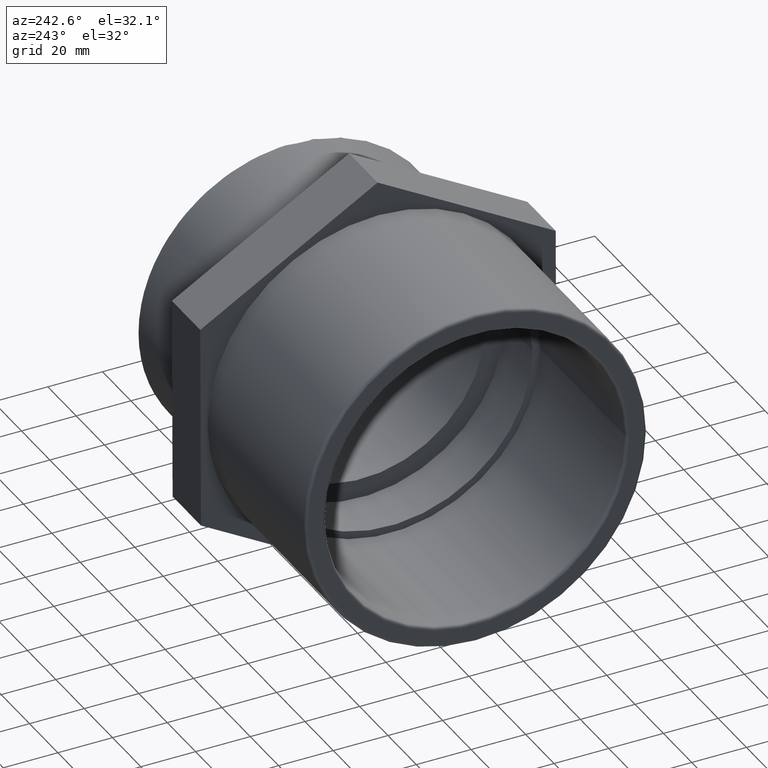
[diagram: clean part render]
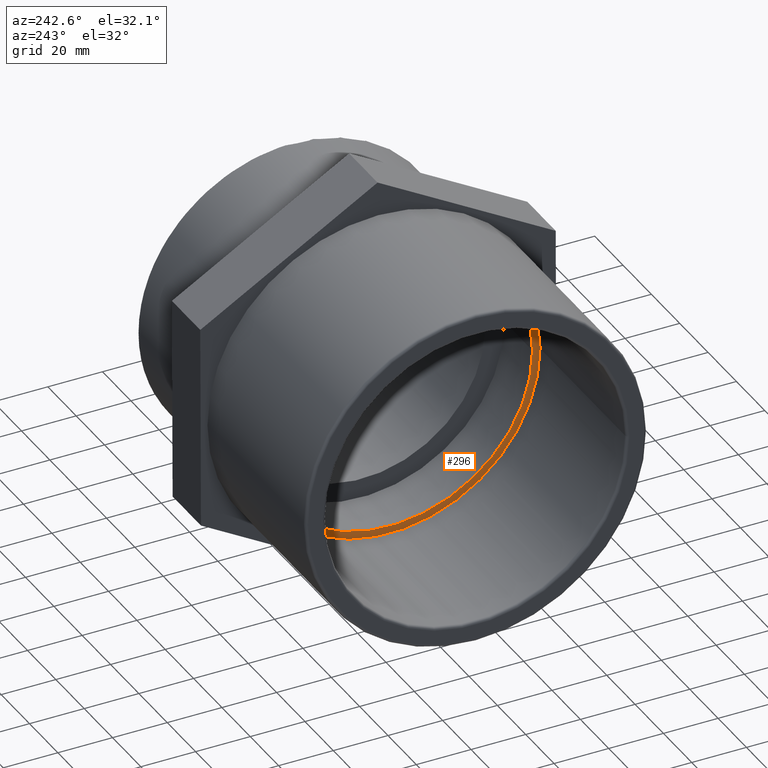
[diagram: same view with one face highlighted and labeled with its STEP entity id]
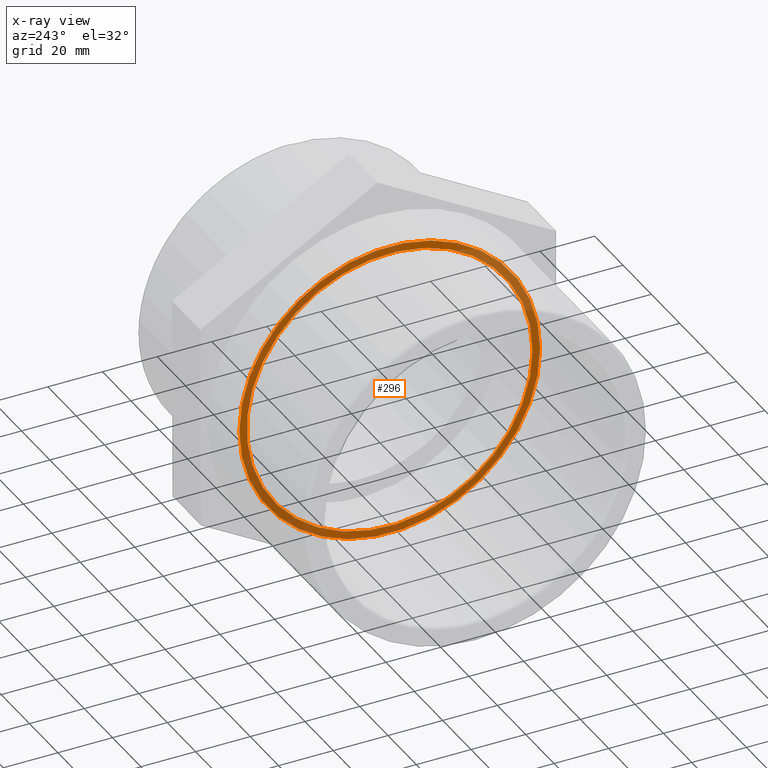
[diagram: x-ray of the same camera — body ghosted, the highlighted face saturated]
A machine part, auxiliary view. The second image highlights one B-rep face of the part: STEP entity #296.
The next image is the same camera in x-ray: the body ghosted, the highlighted face saturated — about 28% of this face is hidden behind the body in this view.
In plain terms, the highlighted planar face has unit normal (-1, -0, 0).
Its self-contained STEP definition (entity closure, byte-faithful):
#30=FACE_BOUND('',#101,.T.);
#44=CIRCLE('',#326,55.);
#47=CIRCLE('',#332,52.25);
#69=FACE_OUTER_BOUND('',#100,.T.);
#100=EDGE_LOOP('',(#248));
#101=EDGE_LOOP('',(#249));
#167=VERTEX_POINT('',#491);
#170=VERTEX_POINT('',#500);
#199=EDGE_CURVE('',#167,#167,#44,.T.);
#202=EDGE_CURVE('',#170,#170,#47,.T.);
#248=ORIENTED_EDGE('',*,*,#199,.T.);
#249=ORIENTED_EDGE('',*,*,#202,.F.);
#276=PLANE('',#331);
#296=ADVANCED_FACE('',(#69,#30),#276,.T.);
#326=AXIS2_PLACEMENT_3D('',#492,#404,#405);
#331=AXIS2_PLACEMENT_3D('',#499,#414,#415);
#332=AXIS2_PLACEMENT_3D('',#501,#416,#417);
#404=DIRECTION('center_axis',(-1.,-6.73555739531044E-16,0.));
#405=DIRECTION('ref_axis',(0.,0.,1.));
#414=DIRECTION('center_axis',(-1.,-6.73555739531044E-16,0.));
#415=DIRECTION('ref_axis',(0.,0.,1.));
#416=DIRECTION('center_axis',(-1.,-6.73555739531044E-16,0.));
#417=DIRECTION('ref_axis',(0.,0.,1.));
#491=CARTESIAN_POINT('',(-3.99999999999999,-55.,0.));
#492=CARTESIAN_POINT('Origin',(-4.00000000000003,9.24608333356249E-15,0.));
#499=CARTESIAN_POINT('Origin',(-4.,-52.25,0.));
#500=CARTESIAN_POINT('',(-4.,-52.25,0.));
#501=CARTESIAN_POINT('Origin',(-4.00000000000003,9.24608333356249E-15,0.));